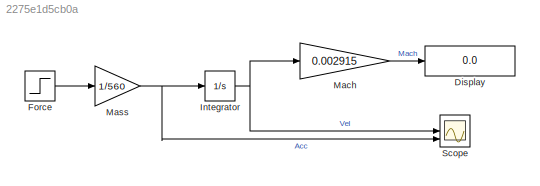
MODEL slx_2275e1d5cb0a
KIND model
CONFIG AbsTol = auto
CONFIG EnableMultiTasking = off
CONFIG FixedStep = auto
CONFIG MaxStep = auto
CONFIG MinStep = auto
CONFIG RelTol = 1e-3
CONFIG SampleTimeConstraint = Unconstrained
CONFIG SolverName = VariableStepAuto
CONFIG StartTime = 0.0
CONFIG StopTime = 10
BLOCK [Display] Display
  Decimation = 1
  Ports = [1]
BLOCK [Step] Force
  After = 0
  Before = 32000
  SampleTime = 0
  Time = 3
BLOCK [Integrator] Integrator
  Ports = [1, 1]
BLOCK [Gain] Mach
  Gain = 0.002915
BLOCK [Gain] Mass
  Gain = 1/560
BLOCK [Scope] Scope
  Floating = off
  NumInputPorts = 3
  Ports = [3]
  ScopeSpecificationString = Simulink.scopes.TimeScopeBlockCfg('CurrentConfiguration', extmgr.ConfigurationSet(extmgr.Configuration('Core','General UI',true),extmgr.Configuration('Core','Source UI',true),extmgr.Configuration('Sources','WiredSimulink',true),extmgr.Configuration('Visuals','Time Domain',true,'SerializedDisplays',{struct('MinYLimReal','-21.42857','MaxYLimReal','192.85714','YLabelReal','','MinYLimMag','0.00000','M...<+1744ch>
LINE Force:1 -> Mass:1
NET Integrator:1 -> Mach:1, Scope:2
LINE Mach:1 -> Display:1
NET Mass:1 -> Integrator:1, Scope:3
note: NET lines group one-source signal fan-out (src -> all destinations, sorted); 1:1 wires keep LINE
